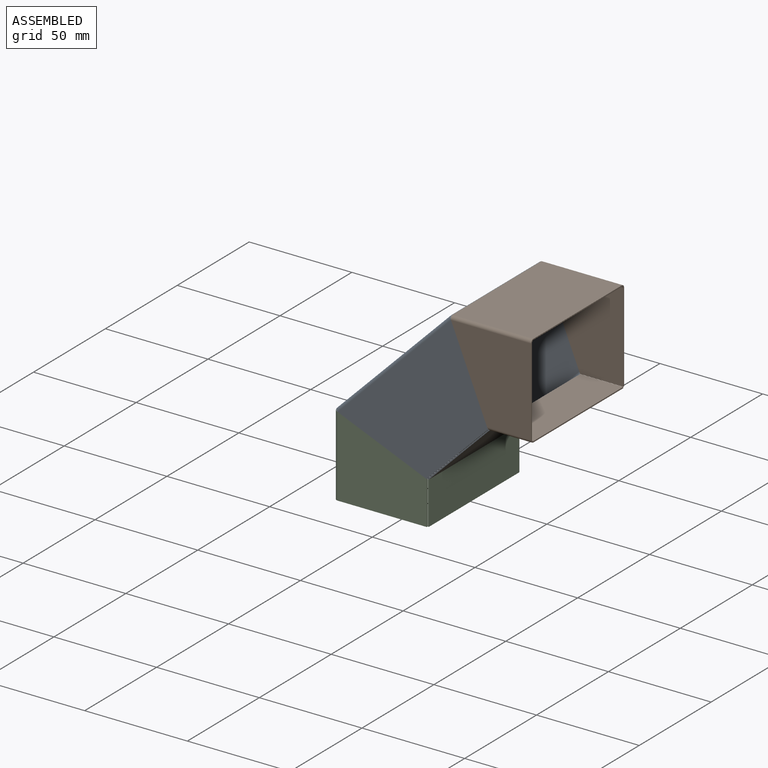
[diagram: assembled view]
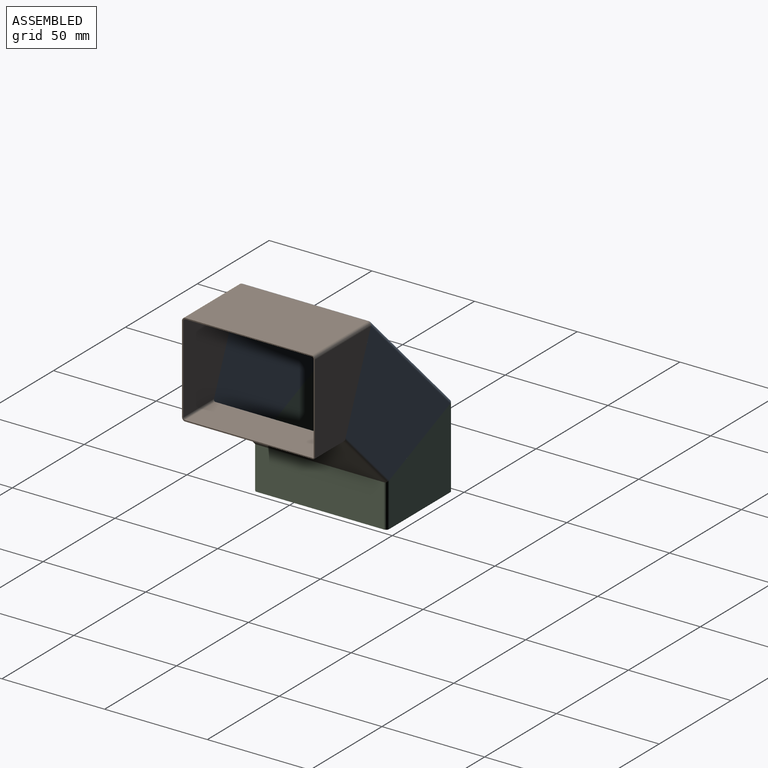
[diagram: assembled view, second angle]
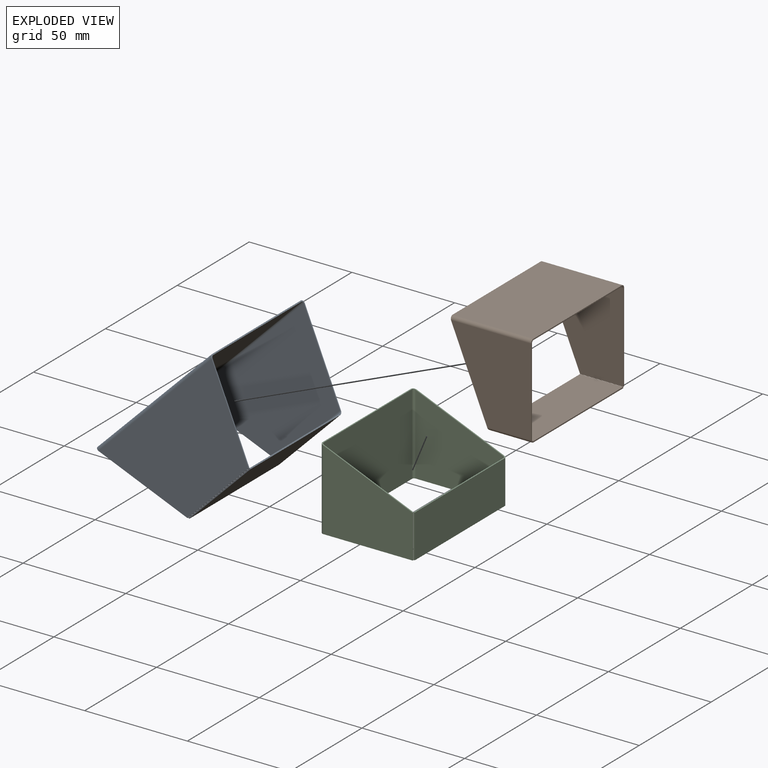
[diagram: exploded view]
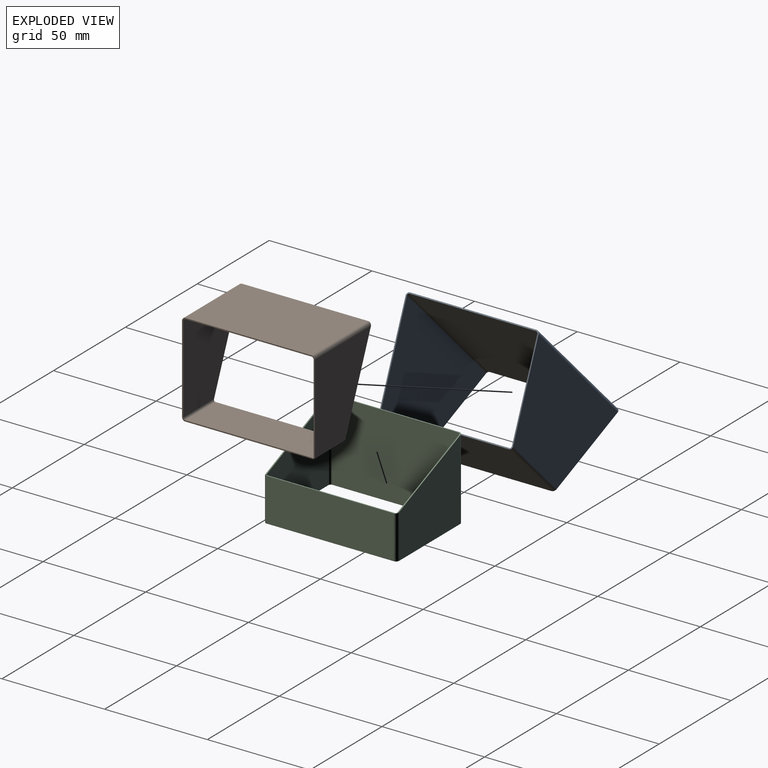
[diagram: exploded view, second angle]
ASSEMBLY  parts=3 mates=2
PART A: 30 faces, bbox 75.3x64.7x75.3 mm
  f0: plane 42.42x17.57mm, normal (-0.38,0,-0.92), area 26.7mm2, adj f2,f3,f18,f27
  f1: plane 42.42x17.57mm, normal (0.92,0,0.38), area 26.7mm2, adj f2,f3,f17,f26
  f2: plane 72.77x72.77mm, normal (0,1,0), area 2566.1mm2, adj f0,f1,f19,f28
  f3: plane 72.77x72.77mm, normal (0,-1,0), area 2566.1mm2, adj f0,f1,f20,f29
  f4: plane 29.77x29.77mm, normal (0.71,0,-0.71), area 24.5mm2, adj f5,f6,f7,f8
  f5: plane 43.41x17.98mm, normal (0.92,0,0.38), area 27.3mm2, adj f4,f7,f8,f13
  f6: plane 43.41x17.98mm, normal (-0.38,0,-0.92), area 27.3mm2, adj f4,f7,f8,f14
  f7: plane 73.18x73.18mm, normal (0,-1,0), area 2608.2mm2, adj f4,f5,f6,f15
  f8: plane 73.18x73.18mm, normal (0,1,0), area 2608.2mm2, adj f4,f5,f6,f16
  f9: plane 61.47x0.41mm, normal (0.71,0,0.71), area 35.8mm2, adj f11,f12,f13,f17
  f10: plane 61.47x0.41mm, normal (-0.71,0,-0.71), area 35.8mm2, adj f11,f12,f14,f18
  f11: plane 61.47x55.8mm, normal (-0.71,0,0.71), area 4850.3mm2, adj f9,f10,f15,f19
  f12: plane 61.47x55.8mm, normal (0.71,0,-0.71), area 4850.3mm2, adj f9,f10,f16,f20
  f13: bspline ~1.6x1.43mm, area 1.2mm2, adj f5,f9,f15,f16
  f14: bspline ~1.6x1.43mm, area 1.2mm2, adj f6,f10,f15,f16
  f15: cylinder r=1.6mm len=56.93mm, axis (0.71,0,0.71), area 197mm2, adj f7,f11,f13,f14
  f16: cylinder r=1.02mm len=56.51mm, axis (0.71,0,0.71), area 125.3mm2, adj f8,f12,f13,f14
  f17: bspline ~1.6x1.43mm, area 1.2mm2, adj f1,f9,f19,f20
  f18: bspline ~1.6x1.43mm, area 1.2mm2, adj f0,f10,f19,f20
  f19: cylinder r=1.6mm len=56.93mm, axis (0.71,0,0.71), area 197mm2, adj f2,f11,f17,f18
  f20: cylinder r=1.02mm len=56.51mm, axis (0.71,0,0.71), area 125.3mm2, adj f3,f12,f17,f18
  f21: plane 30.17x30.17mm, normal (0,-1,0), area 24.5mm2, adj f22,f23,f24,f25
  f22: plane 62.46x0.41mm, normal (-0.71,0,-0.71), area 36.3mm2, adj f21,f24,f25,f27
  f23: plane 62.46x0.41mm, normal (0.71,0,0.71), area 36.3mm2, adj f21,f24,f25,f26
  f24: plane 62.46x29.76mm, normal (0.71,0,-0.71), area 2628.5mm2, adj f21,f22,f23,f28
  f25: plane 62.46x29.76mm, normal (-0.71,0,0.71), area 2628.5mm2, adj f21,f22,f23,f29
  f26: bspline ~1.6x1.44mm, area 1.2mm2, adj f1,f23,f28,f29
  f27: bspline ~1.6x1.44mm, area 1.2mm2, adj f0,f22,f28,f29
  f28: cylinder r=1.6mm len=31.48mm, axis (0.71,0,0.71), area 106.7mm2, adj f2,f24,f26,f27
  f29: cylinder r=1.02mm len=31.07mm, axis (0.71,0,0.71), area 67.8mm2, adj f3,f25,f26,f27
PART B: 30 faces, bbox 45.6x64.7x39.5 mm
  f0: plane 42.42x0.58mm, normal (0,0,-1), area 24.7mm2, adj f2,f3,f18,f26
  f1: plane 42.42x17.57mm, normal (0.38,0,0.92), area 26.7mm2, adj f2,f3,f17,f27
  f2: plane 42.42x39.03mm, normal (0,1,0), area 1283.1mm2, adj f0,f1,f19,f28
  f3: plane 42.42x39.03mm, normal (0,-1,0), area 1283.1mm2, adj f0,f1,f20,f29
  f4: plane 21.05x0.58mm, normal (1,0,0), area 12.2mm2, adj f5,f6,f7,f8
  f5: plane 43.41x17.98mm, normal (0.38,0,0.92), area 27.3mm2, adj f4,f7,f8,f13
  f6: plane 43.41x0.58mm, normal (0,0,-1), area 25.2mm2, adj f4,f7,f8,f14
  f7: plane 43.41x39.03mm, normal (0,-1,0), area 1304.1mm2, adj f4,f5,f6,f15
  f8: plane 43.41x39.03mm, normal (0,1,0), area 1304.1mm2, adj f4,f5,f6,f16
  f9: plane 61.47x0.58mm, normal (0,0,1), area 35.8mm2, adj f11,f12,f13,f17
  f10: plane 61.47x0.58mm, normal (0,0,-1), area 35.8mm2, adj f11,f12,f14,f18
  f11: plane 61.47x39.45mm, normal (-1,0,0), area 2425.1mm2, adj f9,f10,f15,f19
  f12: plane 61.47x39.45mm, normal (1,0,0), area 2425.1mm2, adj f9,f10,f16,f20
  f13: bspline ~1.6x1.6mm, area 1.2mm2, adj f5,f9,f15,f16
  f14: plane 1.6x1.6mm, normal (0,0,-1), area 1.2mm2, adj f6,f10,f15,f16
  f15: cylinder r=1.6mm len=39.45mm, axis (0,0,1), area 98.5mm2, adj f7,f11,f13,f14
  f16: cylinder r=1.02mm len=39.45mm, axis (0,0,1), area 62.6mm2, adj f8,f12,f13,f14
  f17: bspline ~1.6x1.6mm, area 1.2mm2, adj f1,f9,f19,f20
  f18: plane 1.6x1.6mm, normal (0,0,-1), area 1.2mm2, adj f0,f10,f19,f20
  f19: cylinder r=1.6mm len=39.45mm, axis (0,0,1), area 98.5mm2, adj f2,f11,f17,f18
  f20: cylinder r=1.02mm len=39.45mm, axis (0,0,1), area 62.6mm2, adj f3,f12,f17,f18
  f21: plane 21.04x0.58mm, normal (0,-1,0), area 12.2mm2, adj f22,f23,f24,f25
  f22: plane 62.46x0.58mm, normal (0,0,-1), area 36.3mm2, adj f21,f24,f25,f26
  f23: plane 62.46x0.58mm, normal (0,0,1), area 36.3mm2, adj f21,f24,f25,f27
  f24: plane 62.46x21.04mm, normal (1,0,0), area 1314.3mm2, adj f21,f22,f23,f28
  f25: plane 62.46x21.04mm, normal (-1,0,0), area 1314.3mm2, adj f21,f22,f23,f29
  f26: plane 1.6x1.6mm, normal (0,0,-1), area 1.2mm2, adj f0,f22,f28,f29
  f27: bspline ~1.6x1.6mm, area 1.2mm2, adj f1,f23,f28,f29
  f28: cylinder r=1.6mm len=21.46mm, axis (0,0,-1), area 53.1mm2, adj f2,f24,f26,f27
  f29: cylinder r=1.02mm len=21.46mm, axis (0,0,-1), area 33.8mm2, adj f3,f25,f26,f27
PART C: same geometry as B
PLACE A at identity
PLACE B rot(axis=(0.71,0,-0.71),180deg) t=(0,0,0)mm
PLACE C at identity
MATE fastened C.f5 <-> A.f6  axis (0.38,0,0.92) through (-72.53,-32.04,30.04)mm
MATE fastened B.f5 <-> A.f1  axis (-0.92,0,-0.38) through (-30.04,32.04,72.53)mm
